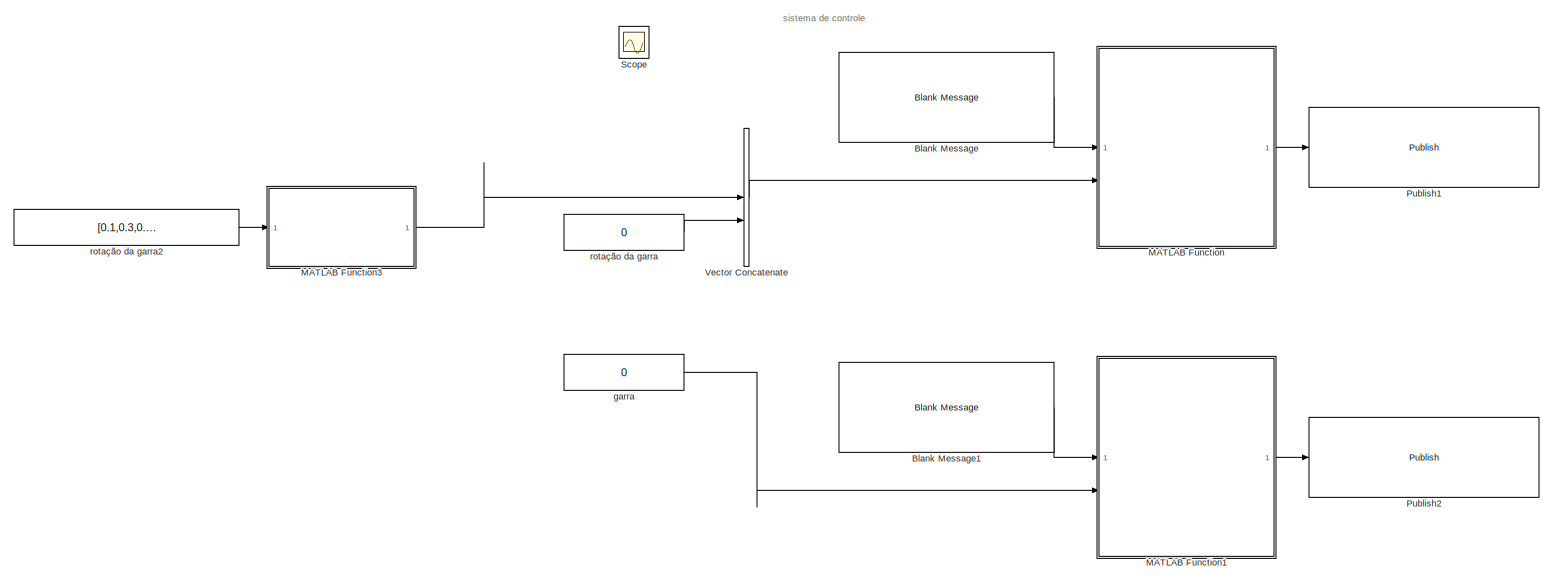
[diagram: root canvas - part 1/1, most of the canvas]
MODEL slx_f266fd4bbc45
KIND model
CONFIG AbsTol = auto
CONFIG EnableMultiTasking = off
CONFIG FixedStep = auto
CONFIG MaxStep = auto
CONFIG MinStep = auto
CONFIG RelTol = 1e-3
CONFIG SampleTimeConstraint = Unconstrained
CONFIG SolverName = FixedStepAuto
CONFIG StartTime = 0.0
CONFIG StopTime = 10.0
WORKSPACE source: mxarray member
WORKSPACE SL_ROS_VariableLengthArrays_MaxSizes: object (value not decoded)
BLOCK [Reference] Blank Message  REF=robotlib/Blank Message
  SourceBlock = robotlib/Blank Message
  SourceType = ROS Blank Message
BLOCK [Reference] Blank Message1  REF=robotlib/Blank Message
  SourceBlock = robotlib/Blank Message
  SourceType = ROS Blank Message
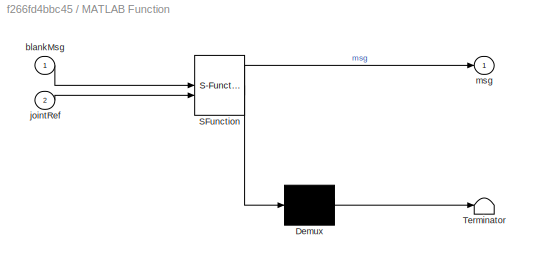
BLOCK [SubSystem] MATLAB Function
  ErrorFcn = Stateflow.Translate.translate
  PermitHierarchicalResolution = ExplicitOnly
  SFBlockType = MATLAB Function
  TreatAsAtomicUnit = on
BLOCK [Demux] MATLAB Function/ Demux 
  Outputs = 1
BLOCK [S-Function] MATLAB Function/ SFunction 
  EnableBusSupport = on
  FunctionName = sf_sfun
  PortCounts = [2 2]
  SFcnIsStateOwnerBlock = off
  SFunctionDeploymentMode = off
  Tag = Stateflow S-Function 2
BLOCK [Terminator] MATLAB Function/ Terminator 
BLOCK [Inport] MATLAB Function/blankMsg
BLOCK [Inport] MATLAB Function/jointRef
  Port = 2
BLOCK [Outport] MATLAB Function/msg
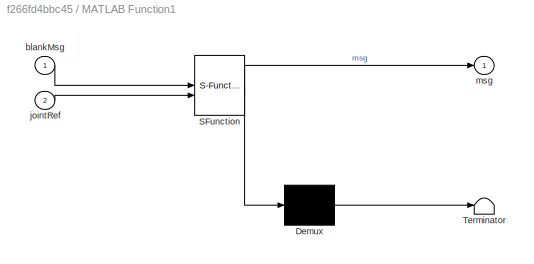
BLOCK [SubSystem] MATLAB Function1
  ErrorFcn = Stateflow.Translate.translate
  PermitHierarchicalResolution = ExplicitOnly
  SFBlockType = MATLAB Function
  TreatAsAtomicUnit = on
BLOCK [Demux] MATLAB Function1/ Demux 
  Outputs = 1
BLOCK [S-Function] MATLAB Function1/ SFunction 
  EnableBusSupport = on
  FunctionName = sf_sfun
  PortCounts = [2 2]
  SFcnIsStateOwnerBlock = off
  SFunctionDeploymentMode = off
  Tag = Stateflow S-Function 1
BLOCK [Terminator] MATLAB Function1/ Terminator 
BLOCK [Inport] MATLAB Function1/blankMsg
BLOCK [Inport] MATLAB Function1/jointRef
  Port = 2
BLOCK [Outport] MATLAB Function1/msg
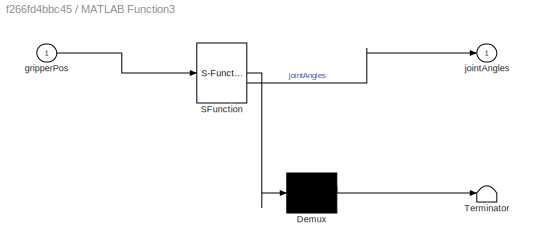
BLOCK [SubSystem] MATLAB Function3
  ErrorFcn = Stateflow.Translate.translate
  PermitHierarchicalResolution = ExplicitOnly
  SFBlockType = MATLAB Function
  TreatAsAtomicUnit = on
BLOCK [Demux] MATLAB Function3/ Demux 
  Outputs = 1
BLOCK [S-Function] MATLAB Function3/ SFunction 
  EnableBusSupport = on
  FunctionName = sf_sfun
  PortCounts = [1 2]
  SFcnIsStateOwnerBlock = off
  SFunctionDeploymentMode = off
  Tag = Stateflow S-Function 4
BLOCK [Terminator] MATLAB Function3/ Terminator 
BLOCK [Inport] MATLAB Function3/gripperPos
BLOCK [Outport] MATLAB Function3/jointAngles
BLOCK [Reference] Publish1  REF=robotlib/Publish
  SourceBlock = robotlib/Publish
  SourceType = ROS Publish
BLOCK [Reference] Publish2  REF=robotlib/Publish
  SourceBlock = robotlib/Publish
  SourceType = ROS Publish
BLOCK [Scope] Scope
  Floating = off
  IOType = viewer
  NumInputPorts = 1
  ScopeSpecificationString = Simulink.scopes.TimeScopeBlockCfg('CurrentConfiguration', extmgr.ConfigurationSet(extmgr.Configuration('Core','General UI',true),extmgr.Configuration('Core','Source UI',true),extmgr.Configuration('Sources','WiredSimulink',true),extmgr.Configuration('Visuals','Time Domain',true,'SerializedDisplays',{struct('MinYLimReal','-10.00000','MaxYLimReal','10.00000','YLabelReal','','MinYLimMag','0.00000','Ma...<+1415ch>
BLOCK [Concatenate] Vector Concatenate
BLOCK [Constant] garra
  Value = 0
BLOCK [Constant] rotação da garra
  Value = 0
BLOCK [Constant] rotação da garra2
  Value = [0.1,0.3,0.5]
ANNOTATION (root): sistema de controle
LINE Blank Message1:1 -> MATLAB Function1:1
LINE Blank Message:1 -> MATLAB Function:1
LINE MATLAB Function1:1 -> Publish2:1
LINE MATLAB Function3:1 -> Vector Concatenate:1
LINE MATLAB Function:1 -> Publish1:1
LINE Vector Concatenate:1 -> MATLAB Function:2
LINE garra:1 -> MATLAB Function1:2
LINE rotação da garra2:1 -> MATLAB Function3:1
LINE rotação da garra:1 -> Vector Concatenate:2
CHART MATLAB Function1 states=1 transitions=1
  STATE_LABEL 'eML_blk_kernel()'
  STATE_LABEL "SCRIPT:\nfunction msg = packageTrajectory(blankMsg, jointRef)\n\n    msg = blankMsg;\n\n    \n    numJoints = uint32(1);\n    msg.JointNames_SL_Info.CurrentLength = numJoints;\n\n  \n    name = 'robotiq_85_left_knuckle_joint';\n    msg.JointNames(1).Data(1:length(name)) = uint8(name);\n    msg.JointNames(1).Data_SL_Info.CurrentLength = uint32(length(name));\n\n    msg.Points_SL_Info.CurrentLength = uint32(1);\n\n...<+833ch>"
CHART MATLAB Function states=1 transitions=1
  STATE_LABEL 'eML_blk_kernel()'
  STATE_LABEL "SCRIPT:\nfunction msg = packageTrajectory(blankMsg, jointRef)\n\n    msg = blankMsg;\n\nmsg.JointNames_SL_Info.CurrentLength = uint32(6);\n\nmsg.JointNames(1).Data_SL_Info.CurrentLength = uint32(18);\nmsg.JointNames(1).Data(1:18) = uint8('shoulder_pan_joint')';\nmsg.JointNames(2).Data_SL_Info.CurrentLength = uint32(19);\nmsg.JointNames(2).Data(1:19) = uint8('shoulder_lift_joint')';\nmsg.JointNames(3).Data_SL...<+1341ch>"
CHART MATLAB Function3 states=1 transitions=1
  STATE_LABEL 'eML_blk_kernel()'
  STATE_LABEL "SCRIPT:\nfunction jointAngles = inverseKinematicsUR5e(gripperPos)\n%#codegen\n\n% Entrada: gripperPos - [x, y, z]\n% Saída: jointAngles - [1x6] vetor de ângulos das juntas\n\n% Persistência dos objetos (IK e modelo do robô)\npersistent ik UR5e initialGuess ikWeights\n\nif isempty(UR5e)\n    % Carrega o modelo do UR5e\n    UR5e = loadrobot('universalUR5e','DataFormat','row');\n    \n    % Corrige transformações\n...<+1176ch>"
CHART  states=0 transitions=0
CHART  states=0 transitions=0
CHART  states=0 transitions=0
